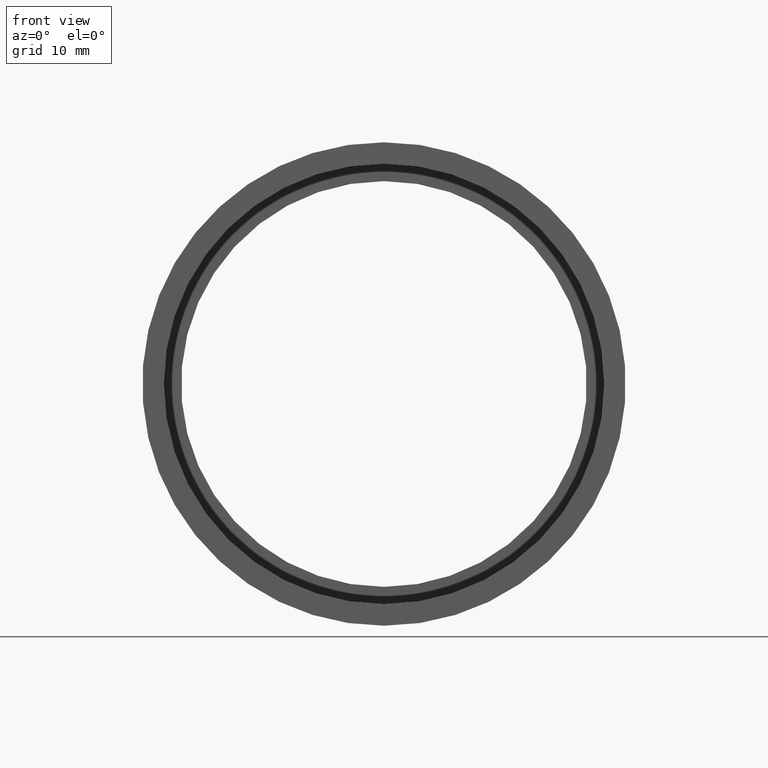
[diagram: clean part render]
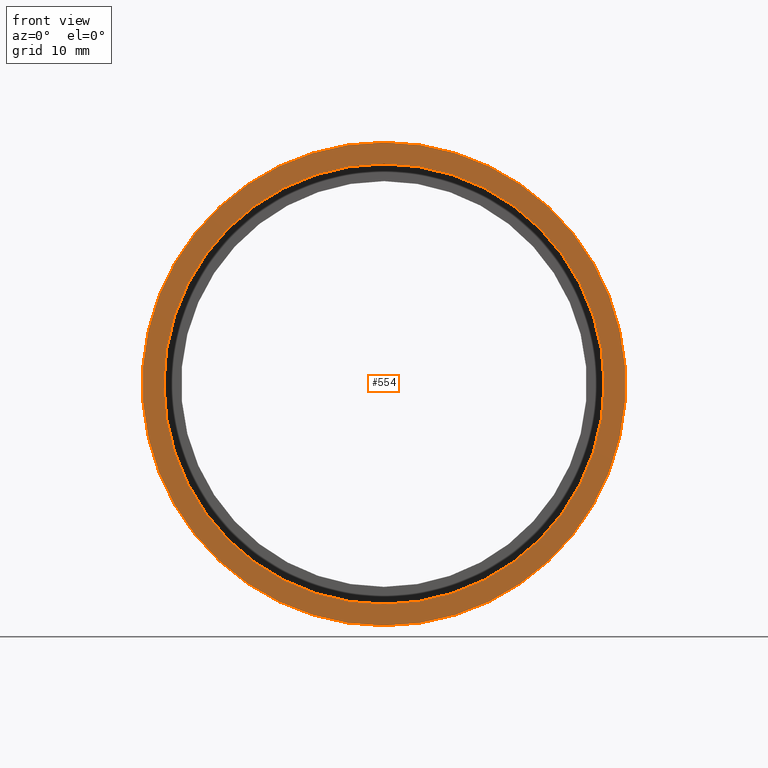
[diagram: same view with one face highlighted and labeled with its STEP entity id]
A machine part, front view. The second image highlights one B-rep face of the part: STEP entity #554.
In plain terms, the highlighted planar face has unit normal (-0, 1, 0).
Its self-contained STEP definition (entity closure, byte-faithful):
#20 = DIRECTION ( 'NONE',  ( 0.0000000000000000000, 0.0000000000000000000, 1.000000000000000000 ) ) ;
#26 = CIRCLE ( 'NONE', #261, 28.00000000000001800 ) ;
#32 = DIRECTION ( 'NONE',  ( -0.0000000000000000000, 1.000000000000000000, -0.0000000000000000000 ) ) ;
#61 = ORIENTED_EDGE ( 'NONE', *, *, #390, .T. ) ;
#67 = CARTESIAN_POINT ( 'NONE',  ( 3.122849337825753000E-015, -2.775557561562891400E-014, -25.50000000000001800 ) ) ;
#76 = VERTEX_POINT ( 'NONE', #67 ) ;
#110 = CARTESIAN_POINT ( 'NONE',  ( 3.429011037612590900E-015, -2.775557561562891400E-014, -28.00000000000001800 ) ) ;
#115 = ORIENTED_EDGE ( 'NONE', *, *, #279, .T. ) ;
#124 = ORIENTED_EDGE ( 'NONE', *, *, #215, .F. ) ;
#141 = ORIENTED_EDGE ( 'NONE', *, *, #493, .F. ) ;
#142 = CIRCLE ( 'NONE', #228, 25.50000000000001800 ) ;
#166 = CARTESIAN_POINT ( 'NONE',  ( 28.00000000000001800, -1.408179048343280700E-014, 0.0000000000000000000 ) ) ;
#215 = EDGE_CURVE ( 'NONE', #485, #226, #435, .T. ) ;
#220 = PLANE ( 'NONE',  #442 ) ;
#226 = VERTEX_POINT ( 'NONE', #287 ) ;
#228 = AXIS2_PLACEMENT_3D ( 'NONE', #253, #259, #354 ) ;
#235 = DIRECTION ( 'NONE',  ( 0.0000000000000000000, 0.0000000000000000000, 1.000000000000000000 ) ) ;
#236 = FACE_OUTER_BOUND ( 'NONE', #470, .T. ) ;
#253 = CARTESIAN_POINT ( 'NONE',  ( 0.0000000000000000000, -2.775557561562891400E-014, 0.0000000000000000000 ) ) ;
#259 = DIRECTION ( 'NONE',  ( -0.0000000000000000000, 1.000000000000000000, -0.0000000000000000000 ) ) ;
#261 = AXIS2_PLACEMENT_3D ( 'NONE', #265, #501, #450 ) ;
#265 = CARTESIAN_POINT ( 'NONE',  ( 0.0000000000000000000, -2.775557561562891400E-014, 0.0000000000000000000 ) ) ;
#279 = EDGE_CURVE ( 'NONE', #76, #391, #411, .T. ) ;
#287 = CARTESIAN_POINT ( 'NONE',  ( 0.0000000000000000000, -2.775557561562891400E-014, 28.00000000000001800 ) ) ;
#301 = AXIS2_PLACEMENT_3D ( 'NONE', #560, #32, #235 ) ;
#349 = DIRECTION ( 'NONE',  ( -0.0000000000000000000, 1.000000000000000000, -0.0000000000000000000 ) ) ;
#354 = DIRECTION ( 'NONE',  ( 0.0000000000000000000, 0.0000000000000000000, 1.000000000000000000 ) ) ;
#358 = CARTESIAN_POINT ( 'NONE',  ( 0.0000000000000000000, -2.775557561562891400E-014, 25.50000000000001800 ) ) ;
#390 = EDGE_CURVE ( 'NONE', #391, #76, #142, .T. ) ;
#391 = VERTEX_POINT ( 'NONE', #358 ) ;
#411 = CIRCLE ( 'NONE', #439, 25.50000000000001800 ) ;
#412 = DIRECTION ( 'NONE',  ( -0.0000000000000000000, 1.000000000000000000, 0.0000000000000000000 ) ) ;
#415 = FACE_BOUND ( 'NONE', #427, .T. ) ;
#427 = EDGE_LOOP ( 'NONE', ( #61, #115 ) ) ;
#435 = CIRCLE ( 'NONE', #301, 28.00000000000001800 ) ;
#439 = AXIS2_PLACEMENT_3D ( 'NONE', #528, #349, #484 ) ;
#442 = AXIS2_PLACEMENT_3D ( 'NONE', #166, #412, #20 ) ;
#450 = DIRECTION ( 'NONE',  ( 0.0000000000000000000, 0.0000000000000000000, 1.000000000000000000 ) ) ;
#470 = EDGE_LOOP ( 'NONE', ( #141, #124 ) ) ;
#484 = DIRECTION ( 'NONE',  ( 0.0000000000000000000, 0.0000000000000000000, 1.000000000000000000 ) ) ;
#485 = VERTEX_POINT ( 'NONE', #110 ) ;
#493 = EDGE_CURVE ( 'NONE', #226, #485, #26, .T. ) ;
#501 = DIRECTION ( 'NONE',  ( -0.0000000000000000000, 1.000000000000000000, -0.0000000000000000000 ) ) ;
#528 = CARTESIAN_POINT ( 'NONE',  ( 0.0000000000000000000, -2.775557561562891400E-014, 0.0000000000000000000 ) ) ;
#554 = ADVANCED_FACE ( 'NONE', ( #236, #415 ), #220, .F. ) ;
#560 = CARTESIAN_POINT ( 'NONE',  ( 0.0000000000000000000, -2.775557561562891400E-014, 0.0000000000000000000 ) ) ;